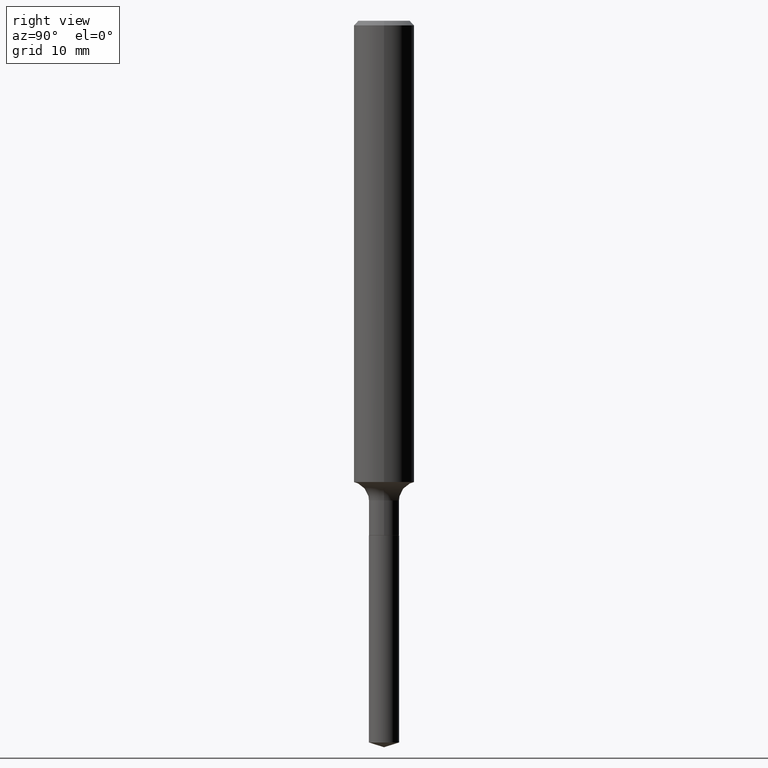
[diagram: clean part render]
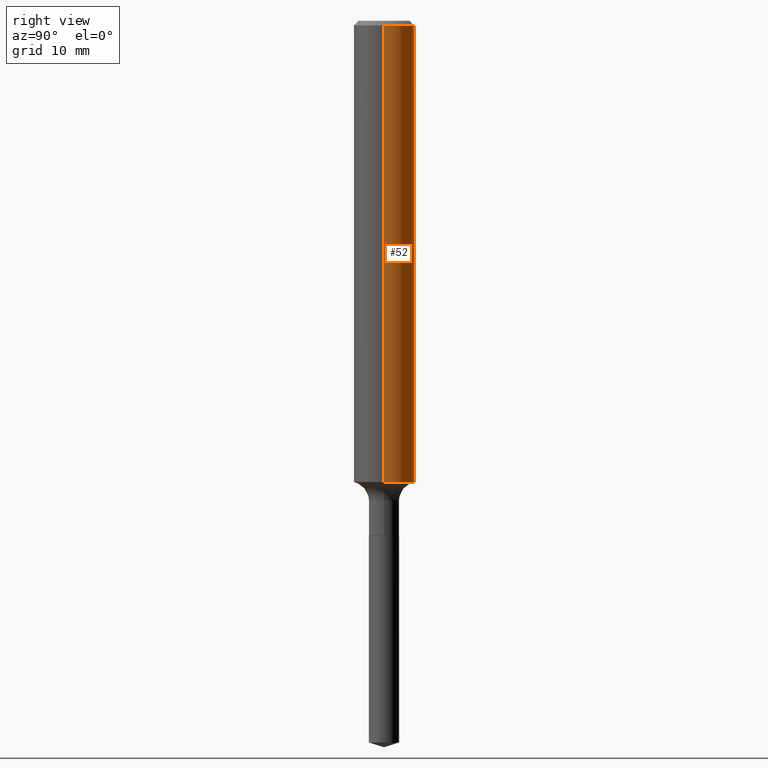
[diagram: same view with one face highlighted and labeled with its STEP entity id]
A machine part, right view. The second image highlights one B-rep face of the part: STEP entity #52.
In plain terms, the highlighted cylindrical surface (edge-blend (fillet) strip) has radius 3.175 mm, axis along (-0, 0, 1).
Its self-contained STEP definition (entity closure, byte-faithful):
#2 = CARTESIAN_POINT ( 'NONE',  ( -0.1250000000000000833, -5.762240128063631559E-15, -1.904755575742896889 ) ) ;
#5 = ORIENTED_EDGE ( 'NONE', *, *, #309, .F. ) ;
#13 = CARTESIAN_POINT ( 'NONE',  ( 0.1250000000000000000, -9.383356098140928781E-16, -0.01875000000000014155 ) ) ;
#52 = ADVANCED_FACE ( 'NONE', ( #492 ), #363, .T. ) ;
#58 = CIRCLE ( 'NONE', #299, 0.1250000000000000000 ) ;
#74 = EDGE_CURVE ( 'NONE', #251, #273, #75, .T. ) ;
#75 = LINE ( 'NONE', #230, #394 ) ;
#80 = DIRECTION ( 'NONE',  ( 1.000000000000000000, -6.982962677686266711E-15, 0.000000000000000000 ) ) ;
#86 = CARTESIAN_POINT ( 'NONE',  ( 4.658020343886464601E-29, -6.650418547763756792E-15, -1.904755575742896889 ) ) ;
#106 = EDGE_CURVE ( 'NONE', #214, #273, #58, .T. ) ;
#128 = DIRECTION ( 'NONE',  ( -2.445468806185136597E-29, 3.491481338843145583E-15, 1.000000000000000000 ) ) ;
#150 = DIRECTION ( 'NONE',  ( -2.445468806185136597E-29, 3.491481338843145583E-15, 1.000000000000000000 ) ) ;
#159 = CARTESIAN_POINT ( 'NONE',  ( 0.1250000000000000833, -7.523288882474540130E-15, -1.904755575742896889 ) ) ;
#171 = ORIENTED_EDGE ( 'NONE', *, *, #74, .T. ) ;
#180 = DIRECTION ( 'NONE',  ( -2.445468806185136877E-29, 3.491481338843145188E-15, 1.000000000000000000 ) ) ;
#197 = DIRECTION ( 'NONE',  ( -2.445468806185136597E-29, 3.491481338843145583E-15, 1.000000000000000000 ) ) ;
#201 = VERTEX_POINT ( 'NONE', #159 ) ;
#214 = VERTEX_POINT ( 'NONE', #13 ) ;
#230 = CARTESIAN_POINT ( 'NONE',  ( -0.1250000000000001110, 8.881784197001260212E-16, -6.148668862818637832E-30 ) ) ;
#234 = DIRECTION ( 'NONE',  ( 1.000000000000000000, -6.982962677686267499E-15, 0.000000000000000000 ) ) ;
#245 = VECTOR ( 'NONE', #180, 39.37007874015748143 ) ;
#246 = ORIENTED_EDGE ( 'NONE', *, *, #250, .T. ) ;
#250 = EDGE_CURVE ( 'NONE', #201, #251, #322, .T. ) ;
#251 = VERTEX_POINT ( 'NONE', #2 ) ;
#263 = LINE ( 'NONE', #486, #245 ) ;
#273 = VERTEX_POINT ( 'NONE', #379 ) ;
#276 = ORIENTED_EDGE ( 'NONE', *, *, #106, .F. ) ;
#297 = DIRECTION ( 'NONE',  ( 1.000000000000000000, -6.982962677686266711E-15, 4.876176775795935232E-29 ) ) ;
#299 = AXIS2_PLACEMENT_3D ( 'NONE', #422, #128, #80 ) ;
#309 = EDGE_CURVE ( 'NONE', #201, #214, #263, .T. ) ;
#322 = CIRCLE ( 'NONE', #409, 0.1250000000000001943 ) ;
#363 = CYLINDRICAL_SURFACE ( 'NONE', #452, 0.1250000000000001110 ) ;
#372 = DIRECTION ( 'NONE',  ( -2.445468806185136877E-29, 3.491481338843145188E-15, 1.000000000000000000 ) ) ;
#379 = CARTESIAN_POINT ( 'NONE',  ( -0.1250000000000000000, -2.469763491733405764E-15, -0.01875000000000014155 ) ) ;
#394 = VECTOR ( 'NONE', #372, 39.37007874015748143 ) ;
#409 = AXIS2_PLACEMENT_3D ( 'NONE', #86, #197, #234 ) ;
#413 = EDGE_LOOP ( 'NONE', ( #246, #171, #276, #5 ) ) ;
#422 = CARTESIAN_POINT ( 'NONE',  ( 4.585254011597165626E-31, -6.546527510330947764E-17, -0.01875000000000014155 ) ) ;
#452 = AXIS2_PLACEMENT_3D ( 'NONE', #489, #150, #297 ) ;
#486 = CARTESIAN_POINT ( 'NONE',  ( 0.1250000000000001110, -8.728703347107841277E-16, 6.095220969744924646E-30 ) ) ;
#489 = CARTESIAN_POINT ( 'NONE',  ( 0.000000000000000000, 0.000000000000000000, 0.000000000000000000 ) ) ;
#492 = FACE_OUTER_BOUND ( 'NONE', #413, .T. ) ;